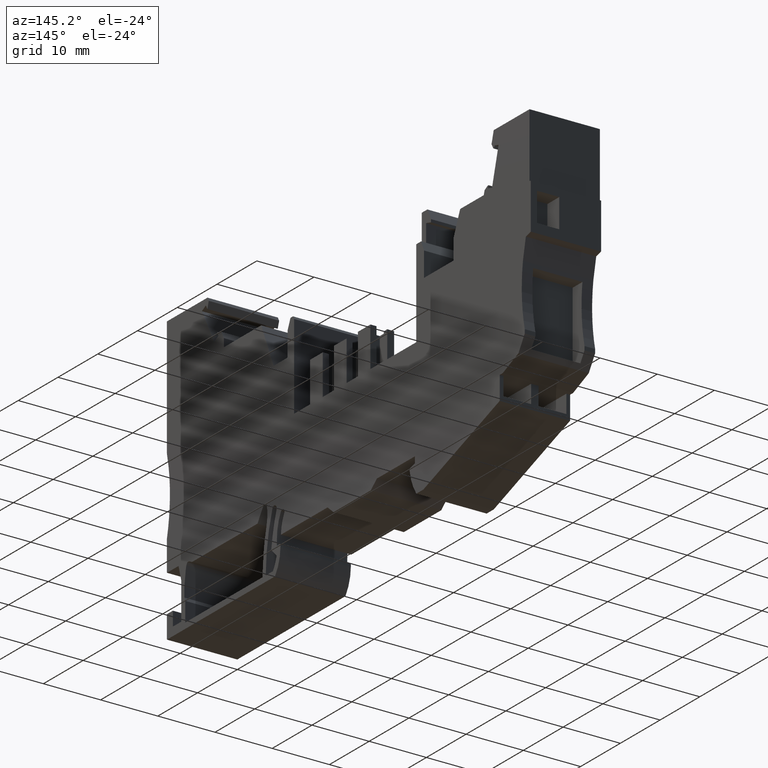
[diagram: clean part render]
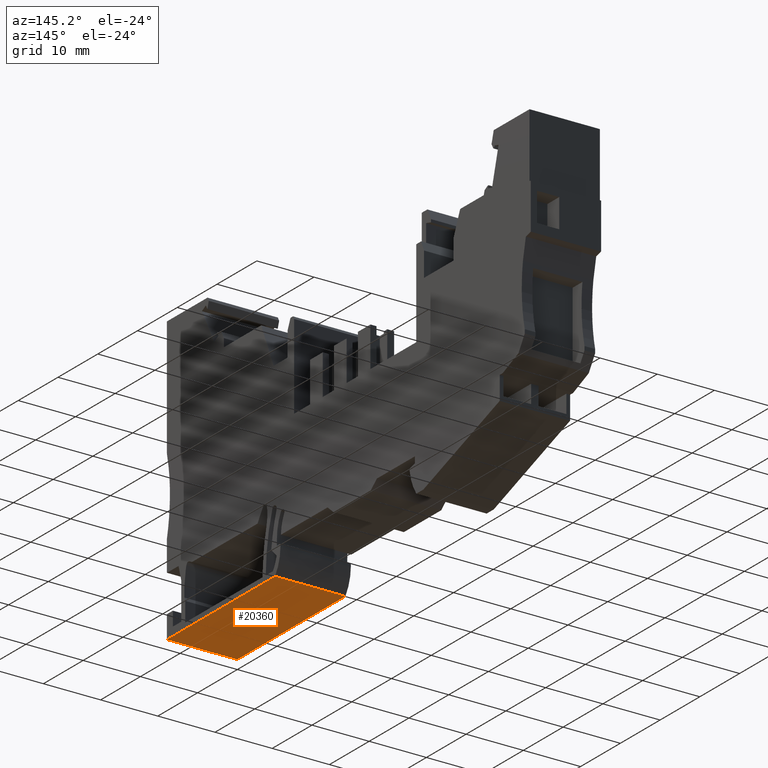
[diagram: same view with one face highlighted and labeled with its STEP entity id]
A machine part, auxiliary view. The second image highlights one B-rep face of the part: STEP entity #20360.
In plain terms, the highlighted planar face has unit normal (0, 0, 1).
Its self-contained STEP definition (entity closure, byte-faithful):
#2150=CARTESIAN_POINT('',(46.6,-23.8,-6.15));
#2160=VERTEX_POINT('',#2150);
#10320=CARTESIAN_POINT('',(19.4003838978744,-23.8,-6.15));
#10330=VERTEX_POINT('',#10320);
#10360=CARTESIAN_POINT('',(45.6,-23.8,-6.15));
#10370=DIRECTION('',(-1.,0.,0.));
#10380=VECTOR('',#10370,1.);
#10390=LINE('',#10360,#10380);
#10400=EDGE_CURVE('',#2160,#10330,#10390,.T.);
#12650=CARTESIAN_POINT('',(19.4003838978744,-23.8,6.15000000000002));
#12660=VERTEX_POINT('',#12650);
#19950=CARTESIAN_POINT('',(46.6,-23.8,6.15000000000002));
#19960=VERTEX_POINT('',#19950);
#19990=CARTESIAN_POINT('',(0.,-23.8,6.15));
#20000=DIRECTION('',(1.,0.,0.));
#20010=VECTOR('',#20000,1.);
#20020=LINE('',#19990,#20010);
#20030=EDGE_CURVE('',#12660,#19960,#20020,.T.);
#20150=CARTESIAN_POINT('',(20.53442794322,-23.8,-6.15));
#20160=DIRECTION('',(0.,1.,-0.));
#20170=DIRECTION('',(-1.,0.,0.));
#20180=AXIS2_PLACEMENT_3D('',#20150,#20160,#20170);
#20190=PLANE('',#20180);
#20200=CARTESIAN_POINT('',(46.6,-23.8,0.));
#20210=DIRECTION('',(0.,0.,1.));
#20220=VECTOR('',#20210,1.);
#20230=LINE('',#20200,#20220);
#20240=EDGE_CURVE('',#2160,#19960,#20230,.T.);
#20250=ORIENTED_EDGE('',*,*,#20240,.T.);
#20260=ORIENTED_EDGE('',*,*,#10400,.F.);
#20270=CARTESIAN_POINT('',(19.4003838978744,-23.8000000000001,
6.15000000000002));
#20280=DIRECTION('',(-2.76409465618456E-30,2.78809917608406E-14,-1.));
#20290=VECTOR('',#20280,1.);
#20300=LINE('',#20270,#20290);
#20310=EDGE_CURVE('',#12660,#10330,#20300,.T.);
#20320=ORIENTED_EDGE('',*,*,#20310,.T.);
#20330=ORIENTED_EDGE('',*,*,#20030,.F.);
#20340=EDGE_LOOP('',(#20330,#20320,#20260,#20250));
#20350=FACE_OUTER_BOUND('',#20340,.T.);
#20360=ADVANCED_FACE('',(#20350),#20190,.F.);